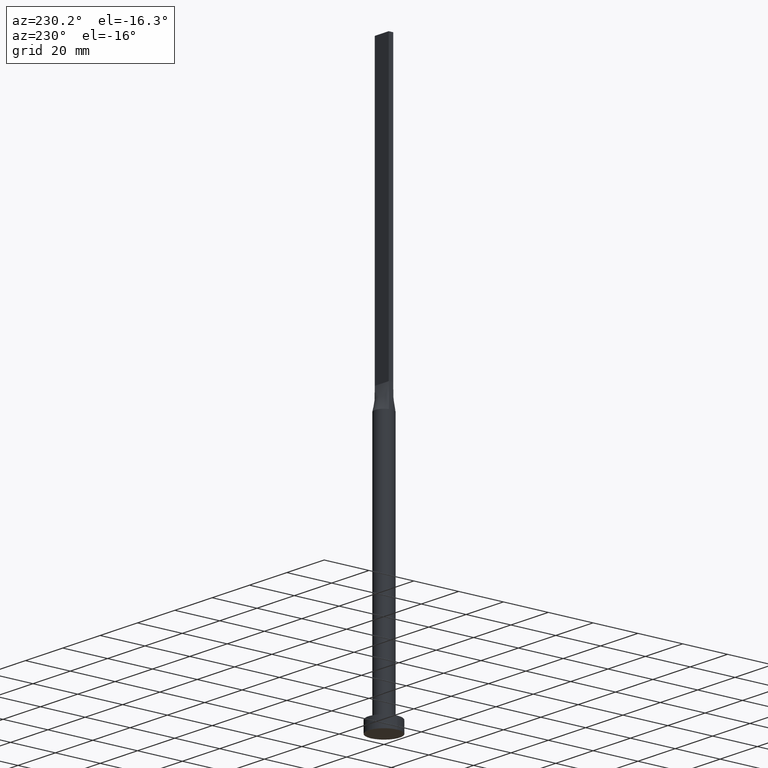
[diagram: clean part render]
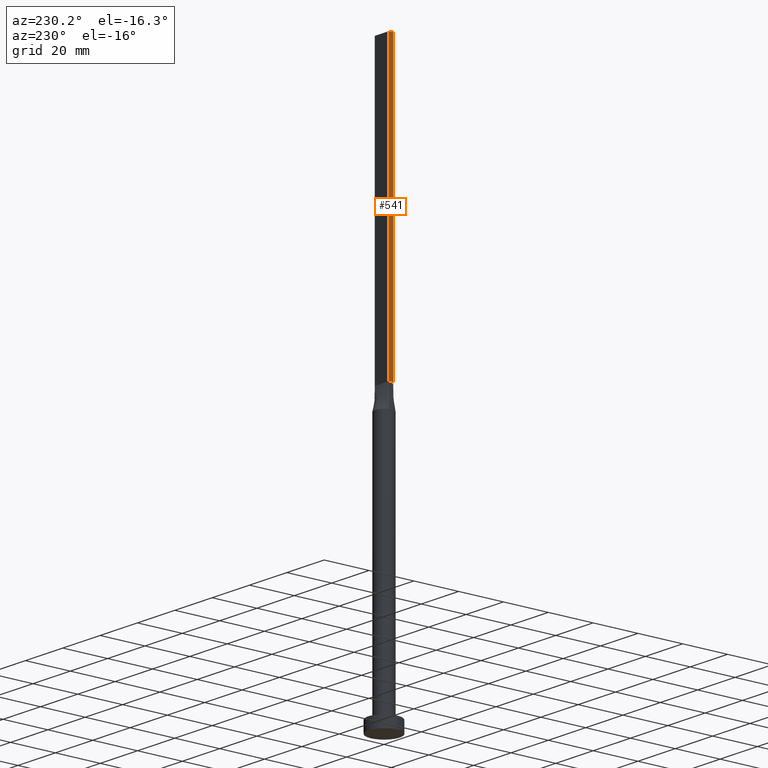
[diagram: same view with one face highlighted and labeled with its STEP entity id]
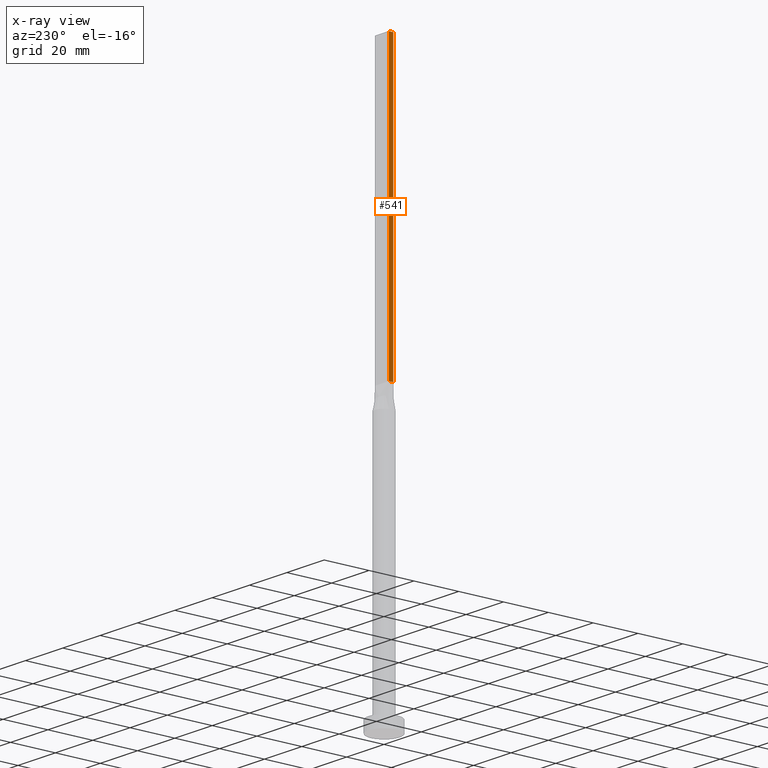
[diagram: x-ray of the same camera — body ghosted, the highlighted face saturated]
A machine part, auxiliary view. The second image highlights one B-rep face of the part: STEP entity #541.
The next image is the same camera in x-ray: the body ghosted, the highlighted face saturated — about 0% of this face is hidden behind the body in this view.
In plain terms, the highlighted planar face has unit normal (1, 0, -0).
Its self-contained STEP definition (entity closure, byte-faithful):
#2 = VERTEX_POINT ( 'NONE', #522 ) ;
#31 = CARTESIAN_POINT ( 'NONE',  ( -3.750000000000000000, 1.000000000000000000, 125.0000000000000000 ) ) ;
#54 = CARTESIAN_POINT ( 'NONE',  ( -3.750000000000000000, 1.000000000000000000, 250.0000000000000000 ) ) ;
#59 = EDGE_CURVE ( 'NONE', #347, #303, #493, .T. ) ;
#97 = ORIENTED_EDGE ( 'NONE', *, *, #59, .T. ) ;
#107 = DIRECTION ( 'NONE',  ( -0.000000000000000000, -0.000000000000000000, -1.000000000000000000 ) ) ;
#134 = VECTOR ( 'NONE', #160, 1000.000000000000000 ) ;
#139 = DIRECTION ( 'NONE',  ( -0.000000000000000000, -0.000000000000000000, -1.000000000000000000 ) ) ;
#142 = VECTOR ( 'NONE', #530, 1000.000000000000000 ) ;
#147 = CARTESIAN_POINT ( 'NONE',  ( -3.750000000000000000, 1.000000000000000000, 250.0000000000000000 ) ) ;
#160 = DIRECTION ( 'NONE',  ( 0.000000000000000000, -1.000000000000000000, 0.000000000000000000 ) ) ;
#186 = CARTESIAN_POINT ( 'NONE',  ( -3.750000000000000000, 1.000000000000000000, 250.0000000000000000 ) ) ;
#191 = EDGE_CURVE ( 'NONE', #303, #393, #484, .T. ) ;
#197 = AXIS2_PLACEMENT_3D ( 'NONE', #147, #246, #205 ) ;
#205 = DIRECTION ( 'NONE',  ( -0.000000000000000000, 0.000000000000000000, -1.000000000000000000 ) ) ;
#246 = DIRECTION ( 'NONE',  ( 1.000000000000000000, 0.000000000000000000, -0.000000000000000000 ) ) ;
#264 = VECTOR ( 'NONE', #139, 1000.000000000000000 ) ;
#265 = ORIENTED_EDGE ( 'NONE', *, *, #191, .T. ) ;
#270 = EDGE_CURVE ( 'NONE', #347, #2, #307, .T. ) ;
#303 = VERTEX_POINT ( 'NONE', #439 ) ;
#307 = LINE ( 'NONE', #561, #134 ) ;
#321 = VECTOR ( 'NONE', #107, 1000.000000000000000 ) ;
#347 = VERTEX_POINT ( 'NONE', #186 ) ;
#348 = EDGE_CURVE ( 'NONE', #2, #393, #500, .T. ) ;
#353 = CARTESIAN_POINT ( 'NONE',  ( -3.750000000000000000, -0.9999999999999991118, 250.0000000000000000 ) ) ;
#355 = EDGE_LOOP ( 'NONE', ( #265, #532, #441, #97 ) ) ;
#393 = VERTEX_POINT ( 'NONE', #514 ) ;
#439 = CARTESIAN_POINT ( 'NONE',  ( -3.750000000000000000, 1.000000000000000000, 125.0000000000000000 ) ) ;
#441 = ORIENTED_EDGE ( 'NONE', *, *, #270, .F. ) ;
#461 = PLANE ( 'NONE',  #197 ) ;
#484 = LINE ( 'NONE', #31, #142 ) ;
#493 = LINE ( 'NONE', #54, #321 ) ;
#500 = LINE ( 'NONE', #353, #264 ) ;
#514 = CARTESIAN_POINT ( 'NONE',  ( -3.750000000000000000, -0.9999999999999991118, 125.0000000000000000 ) ) ;
#522 = CARTESIAN_POINT ( 'NONE',  ( -3.750000000000000000, -0.9999999999999991118, 250.0000000000000000 ) ) ;
#523 = FACE_OUTER_BOUND ( 'NONE', #355, .T. ) ;
#530 = DIRECTION ( 'NONE',  ( 0.000000000000000000, -1.000000000000000000, 0.000000000000000000 ) ) ;
#532 = ORIENTED_EDGE ( 'NONE', *, *, #348, .F. ) ;
#541 = ADVANCED_FACE ( 'NONE', ( #523 ), #461, .F. ) ;
#561 = CARTESIAN_POINT ( 'NONE',  ( -3.750000000000000000, 1.000000000000000000, 250.0000000000000000 ) ) ;